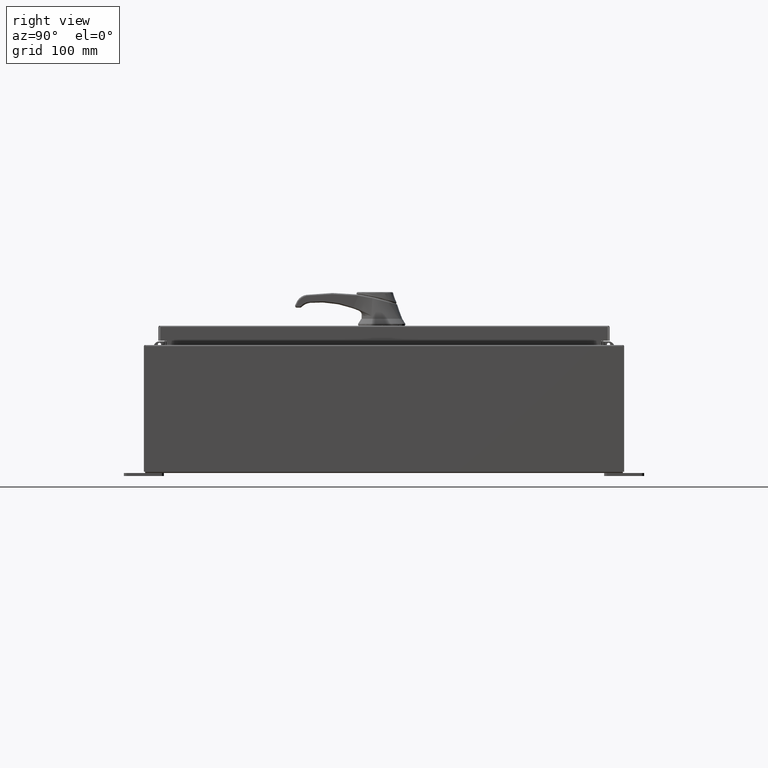
[diagram: clean part render]
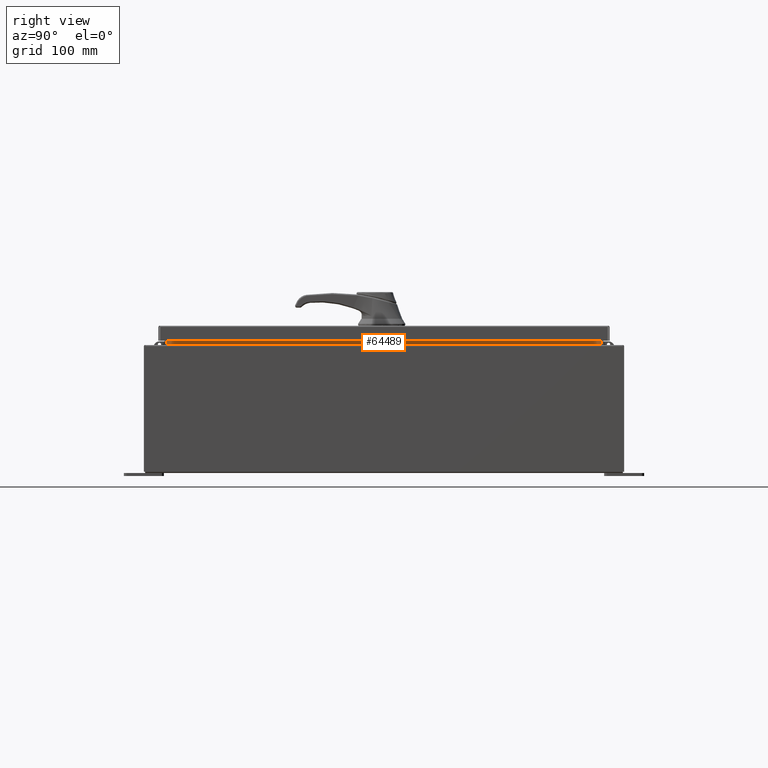
[diagram: same view with one face highlighted and labeled with its STEP entity id]
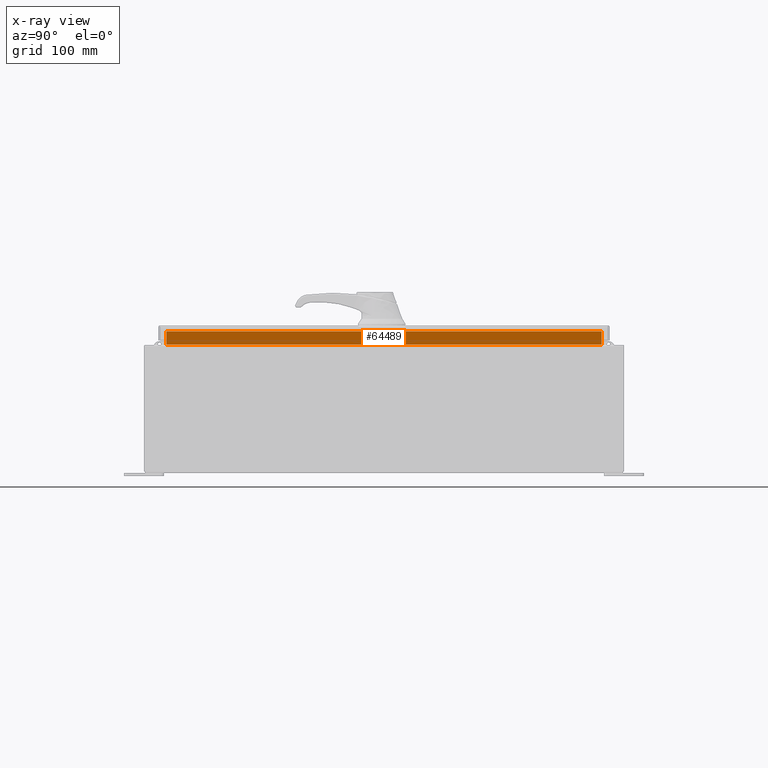
[diagram: x-ray of the same camera — body ghosted, the highlighted face saturated]
A machine part, right view. The second image highlights one B-rep face of the part: STEP entity #64489.
The next image is the same camera in x-ray: the body ghosted, the highlighted face saturated — about 0% of this face is hidden behind the body in this view.
In plain terms, the highlighted planar face has unit normal (1, 0, -0).
Its self-contained STEP definition (entity closure, byte-faithful):
#5484 = ORIENTED_EDGE ( 'NONE', *, *, #45534, .F. ) ;
#8492 = EDGE_CURVE ( 'NONE', #22487, #24087, #64806, .T. ) ;
#9500 = ORIENTED_EDGE ( 'NONE', *, *, #23663, .F. ) ;
#12646 = ORIENTED_EDGE ( 'NONE', *, *, #74632, .F. ) ;
#16479 = LINE ( 'NONE', #92462, #86460 ) ;
#18594 = DIRECTION ( 'NONE',  ( 0.0000000000000000000, 1.000000000000000000, 0.0000000000000000000 ) ) ;
#22487 = VERTEX_POINT ( 'NONE', #43006 ) ;
#22497 = LINE ( 'NONE', #82497, #116813 ) ;
#23197 = PLANE ( 'NONE',  #69867 ) ;
#23663 = EDGE_CURVE ( 'NONE', #72289, #22487, #22497, .T. ) ;
#24087 = VERTEX_POINT ( 'NONE', #109425 ) ;
#27609 = CARTESIAN_POINT ( 'NONE',  ( 13.69970000000003200, -13.59375000000000200, 8.762900000000007200 ) ) ;
#28617 = DIRECTION ( 'NONE',  ( 2.361913319930201500E-015, -0.0000000000000000000, 1.000000000000000000 ) ) ;
#43006 = CARTESIAN_POINT ( 'NONE',  ( 13.69970000000003200, 13.59375000000000200, 8.762900000000007200 ) ) ;
#43413 = VECTOR ( 'NONE', #56349, 39.37007874015748100 ) ;
#45534 = EDGE_CURVE ( 'NONE', #67731, #72289, #16479, .T. ) ;
#47195 = CARTESIAN_POINT ( 'NONE',  ( 13.69970000000003000, 13.59375000000000200, 7.925300000000007100 ) ) ;
#50724 = DIRECTION ( 'NONE',  ( -2.361913319930196000E-015, 0.0000000000000000000, -1.000000000000000000 ) ) ;
#56349 = DIRECTION ( 'NONE',  ( -2.361913319930196000E-015, -0.0000000000000000000, -1.000000000000000000 ) ) ;
#57178 = DIRECTION ( 'NONE',  ( 8.038541222736220000E-017, -1.000000000000000000, 2.411562366820865800E-016 ) ) ;
#59824 = EDGE_LOOP ( 'NONE', ( #111350, #9500, #5484, #12646 ) ) ;
#64489 = ADVANCED_FACE ( 'NONE', ( #64595 ), #23197, .T. ) ;
#64595 = FACE_OUTER_BOUND ( 'NONE', #59824, .T. ) ;
#64806 = LINE ( 'NONE', #47195, #43413 ) ;
#66381 = CARTESIAN_POINT ( 'NONE',  ( 13.69970000000003000, 13.59375000000000200, 7.938300000000007900 ) ) ;
#67731 = VERTEX_POINT ( 'NONE', #98287 ) ;
#69867 = AXIS2_PLACEMENT_3D ( 'NONE', #95854, #105407, #50724 ) ;
#72289 = VERTEX_POINT ( 'NONE', #27609 ) ;
#74632 = EDGE_CURVE ( 'NONE', #24087, #67731, #109328, .T. ) ;
#82497 = CARTESIAN_POINT ( 'NONE',  ( 13.69970000000003200, -13.59375000000000200, 8.762900000000007200 ) ) ;
#86460 = VECTOR ( 'NONE', #28617, 39.37007874015748100 ) ;
#92462 = CARTESIAN_POINT ( 'NONE',  ( 13.69970000000003200, -13.59375000000000200, 8.850600000000007100 ) ) ;
#95854 = CARTESIAN_POINT ( 'NONE',  ( 13.69970000000001100, 0.0000000000000000000, -3.235750390904772800E-014 ) ) ;
#98287 = CARTESIAN_POINT ( 'NONE',  ( 13.69970000000003000, -13.59375000000000400, 7.938300000000010600 ) ) ;
#105407 = DIRECTION ( 'NONE',  ( 1.000000000000000000, 0.0000000000000000000, -2.361913319930196000E-015 ) ) ;
#106424 = VECTOR ( 'NONE', #57178, 39.37007874015748100 ) ;
#109328 = LINE ( 'NONE', #66381, #106424 ) ;
#109425 = CARTESIAN_POINT ( 'NONE',  ( 13.69970000000003000, 13.59374999999998600, 7.938300000000010600 ) ) ;
#111350 = ORIENTED_EDGE ( 'NONE', *, *, #8492, .F. ) ;
#116813 = VECTOR ( 'NONE', #18594, 39.37007874015748100 ) ;